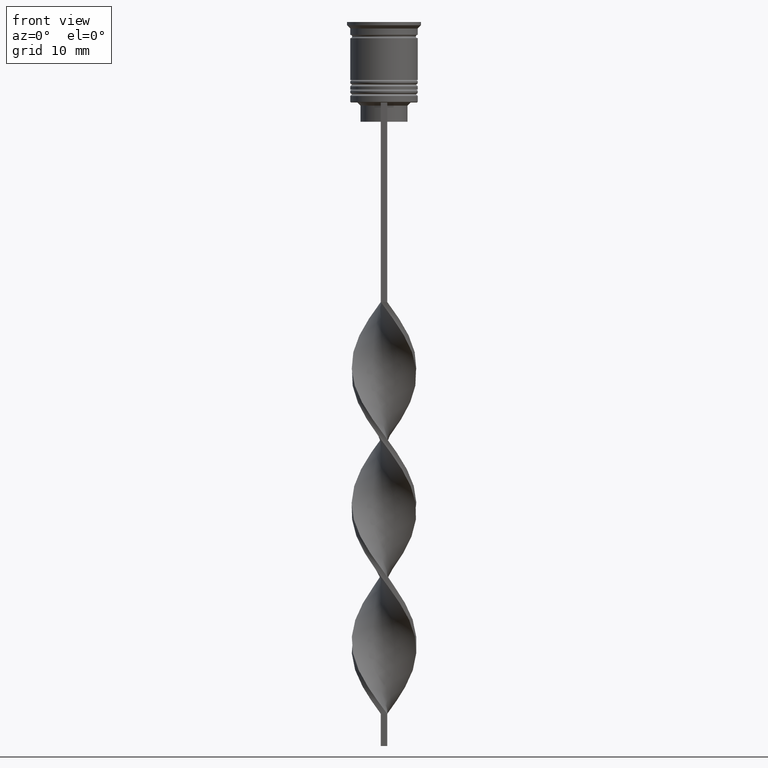
[diagram: clean part render]
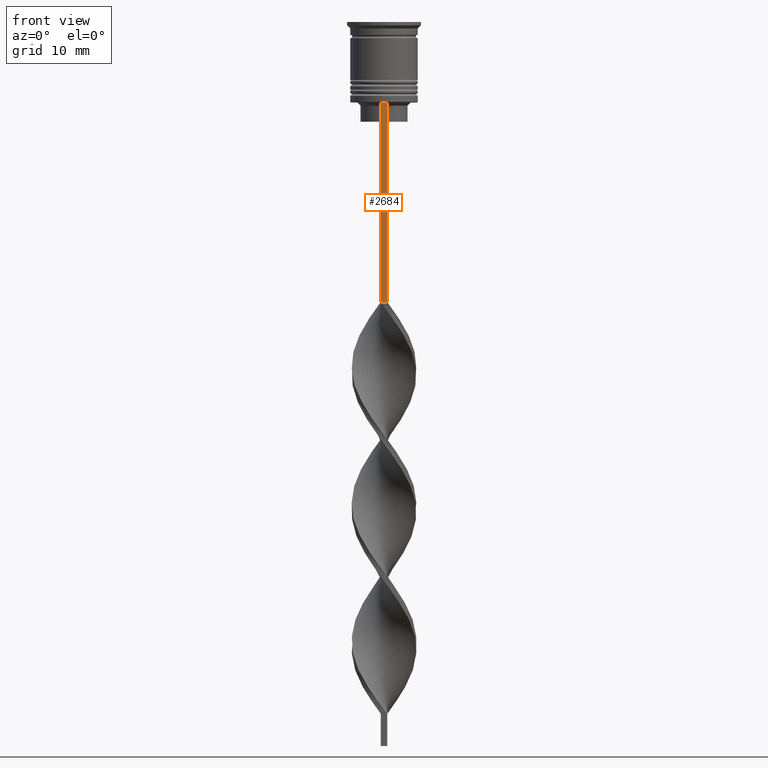
[diagram: same view with one face highlighted and labeled with its STEP entity id]
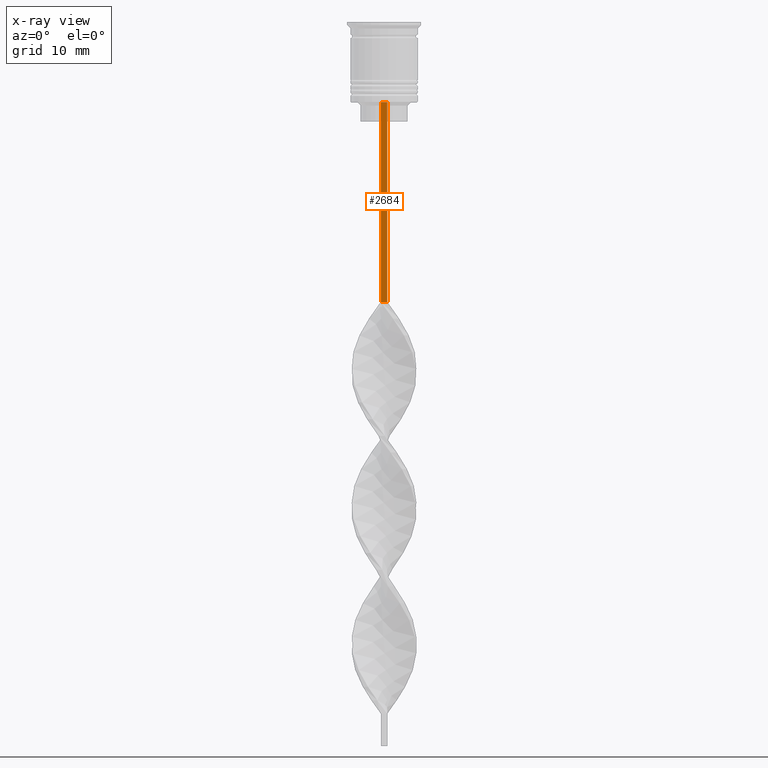
[diagram: x-ray of the same camera — body ghosted, the highlighted face saturated]
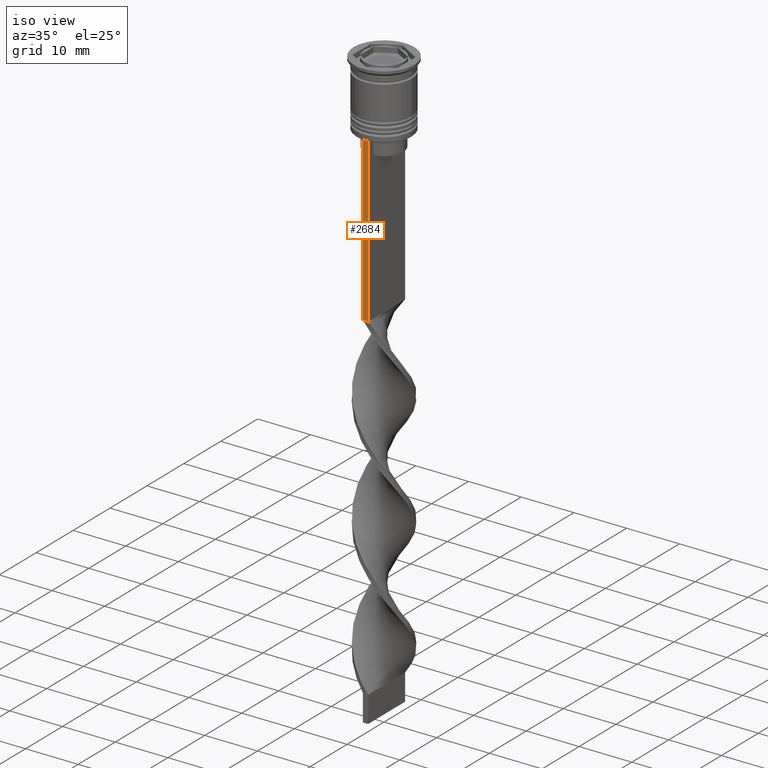
[diagram: same view with one face highlighted and labeled with its STEP entity id]
A machine part, front view. The second image highlights one B-rep face of the part: STEP entity #2684.
The next image is the same camera in x-ray: the body ghosted, the highlighted face saturated — about 0% of this face is hidden behind the body in this view.
A second angle (iso view) of the same face is appended — the face is thin or edge-on in the first view.
In plain terms, the highlighted planar face has unit normal (0, -1, -0).
Its self-contained STEP definition (entity closure, byte-faithful):
#244 = DIRECTION ( 'NONE',  ( 1.000000000000000000, 0.000000000000000000, 0.000000000000000000 ) ) ;
#260 = CARTESIAN_POINT ( 'NONE',  ( 0.5000000000000000000, -4.999999999999999112, -43.50000000000000000 ) ) ;
#277 = LINE ( 'NONE', #2738, #542 ) ;
#340 = DIRECTION ( 'NONE',  ( 0.000000000000000000, -1.000000000000000000, -0.000000000000000000 ) ) ;
#366 = CARTESIAN_POINT ( 'NONE',  ( 0.5000000000000000000, -4.999999999999999112, -12.50000000000000000 ) ) ;
#377 = CARTESIAN_POINT ( 'NONE',  ( 0.5000000000000000000, -4.999999999999999112, -2.450124378879110054 ) ) ;
#408 = VERTEX_POINT ( 'NONE', #3510 ) ;
#420 = EDGE_CURVE ( 'NONE', #2930, #408, #2226, .T. ) ;
#485 = VECTOR ( 'NONE', #843, 1000.000000000000000 ) ;
#542 = VECTOR ( 'NONE', #244, 1000.000000000000000 ) ;
#578 = EDGE_LOOP ( 'NONE', ( #2777, #1563, #593, #1092 ) ) ;
#593 = ORIENTED_EDGE ( 'NONE', *, *, #3168, .F. ) ;
#717 = VECTOR ( 'NONE', #1421, 1000.000000000000000 ) ;
#843 = DIRECTION ( 'NONE',  ( 0.000000000000000000, 0.000000000000000000, -1.000000000000000000 ) ) ;
#845 = FACE_OUTER_BOUND ( 'NONE', #578, .T. ) ;
#1092 = ORIENTED_EDGE ( 'NONE', *, *, #1442, .F. ) ;
#1186 = VERTEX_POINT ( 'NONE', #366 ) ;
#1404 = CARTESIAN_POINT ( 'NONE',  ( 0.5000000000000000000, -4.999999999999999112, -2.450124378879110054 ) ) ;
#1421 = DIRECTION ( 'NONE',  ( 0.000000000000000000, 0.000000000000000000, -1.000000000000000000 ) ) ;
#1442 = EDGE_CURVE ( 'NONE', #1186, #3278, #2508, .T. ) ;
#1563 = ORIENTED_EDGE ( 'NONE', *, *, #420, .T. ) ;
#1569 = AXIS2_PLACEMENT_3D ( 'NONE', #377, #340, #3122 ) ;
#1583 = DIRECTION ( 'NONE',  ( -1.000000000000000000, 0.000000000000000000, 0.000000000000000000 ) ) ;
#2195 = VECTOR ( 'NONE', #1583, 1000.000000000000000 ) ;
#2226 = LINE ( 'NONE', #3266, #485 ) ;
#2508 = LINE ( 'NONE', #1404, #717 ) ;
#2609 = CARTESIAN_POINT ( 'NONE',  ( -0.5000000000000000000, -4.999999999999999112, -12.50000000000000000 ) ) ;
#2684 = ADVANCED_FACE ( 'NONE', ( #845 ), #2728, .T. ) ;
#2728 = PLANE ( 'NONE',  #1569 ) ;
#2738 = CARTESIAN_POINT ( 'NONE',  ( 0.5000000000000000000, -4.999999999999999112, -12.50000000000000000 ) ) ;
#2777 = ORIENTED_EDGE ( 'NONE', *, *, #3176, .F. ) ;
#2930 = VERTEX_POINT ( 'NONE', #2609 ) ;
#2938 = LINE ( 'NONE', #260, #2195 ) ;
#3122 = DIRECTION ( 'NONE',  ( 0.000000000000000000, 0.000000000000000000, -1.000000000000000000 ) ) ;
#3168 = EDGE_CURVE ( 'NONE', #3278, #408, #2938, .T. ) ;
#3176 = EDGE_CURVE ( 'NONE', #2930, #1186, #277, .T. ) ;
#3266 = CARTESIAN_POINT ( 'NONE',  ( -0.5000000000000000000, -4.999999999999999112, -2.450124378879110054 ) ) ;
#3278 = VERTEX_POINT ( 'NONE', #3283 ) ;
#3283 = CARTESIAN_POINT ( 'NONE',  ( 0.5000000000000000000, -4.999999999999999112, -43.50000000000000000 ) ) ;
#3510 = CARTESIAN_POINT ( 'NONE',  ( -0.5000000000000000000, -4.999999999999999112, -43.50000000000000000 ) ) ;